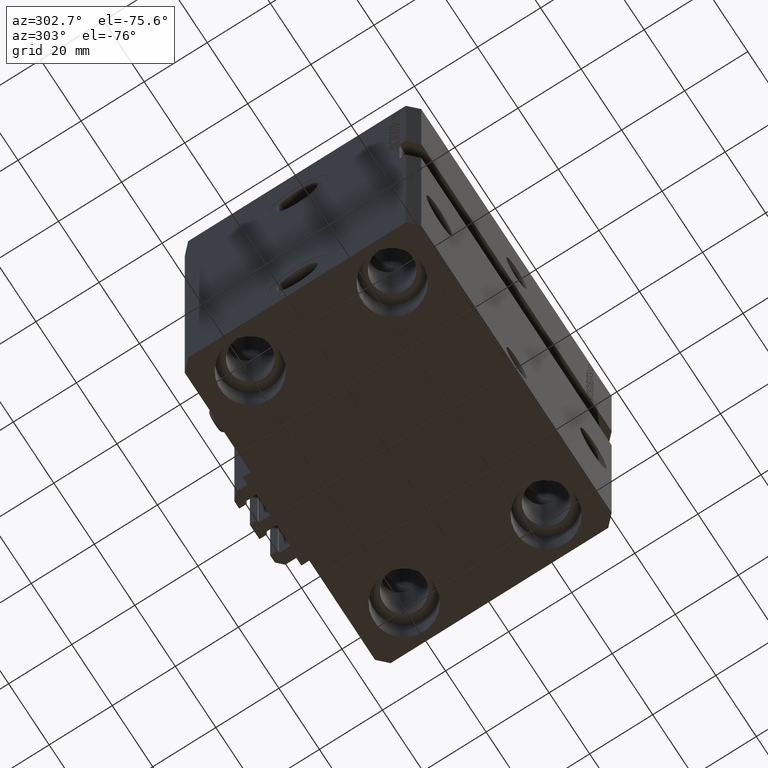
[diagram: clean part render]
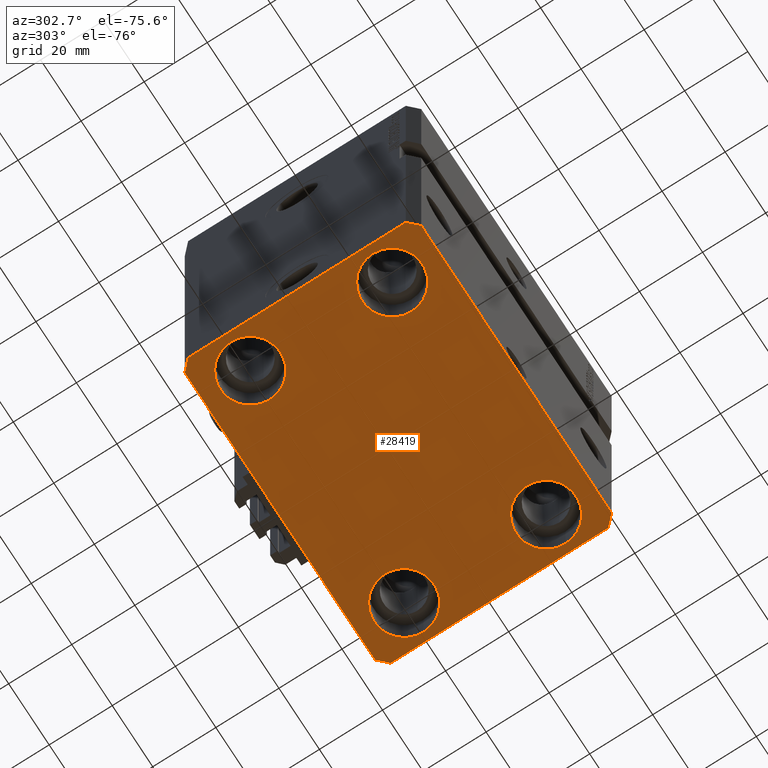
[diagram: same view with one face highlighted and labeled with its STEP entity id]
A machine part, auxiliary view. The second image highlights one B-rep face of the part: STEP entity #28419.
In plain terms, the highlighted planar face has unit normal (0, 0, 1).
Its self-contained STEP definition (entity closure, byte-faithful):
#1051 = DIRECTION ( 'NONE',  ( -0.7071067811865483499, -0.7071067811865466846, 0.000000000000000000 ) ) ;
#1661 = DIRECTION ( 'NONE',  ( 1.000000000000000000, 0.000000000000000000, 0.000000000000000000 ) ) ;
#1916 = EDGE_LOOP ( 'NONE', ( #3172, #8555 ) ) ;
#2616 = CARTESIAN_POINT ( 'NONE',  ( -50.00000000000000000, -34.50000000000000000, -125.0000000000000000 ) ) ;
#2735 = DIRECTION ( 'NONE',  ( -0.000000000000000000, -0.000000000000000000, 1.000000000000000000 ) ) ;
#2848 = LINE ( 'NONE', #2616, #47246 ) ;
#3172 = ORIENTED_EDGE ( 'NONE', *, *, #12357, .T. ) ;
#3466 = CARTESIAN_POINT ( 'NONE',  ( -38.00000000000000711, 22.50000000000000000, -125.0000000000000000 ) ) ;
#4234 = CARTESIAN_POINT ( 'NONE',  ( -47.00000000000001421, 37.50000000000000000, -125.0000000000000000 ) ) ;
#4699 = CARTESIAN_POINT ( 'NONE',  ( 38.00000000000000711, -22.50000000000000000, -125.0000000000000000 ) ) ;
#5129 = CARTESIAN_POINT ( 'NONE',  ( -50.00000000000001421, 34.50000000000000000, -125.0000000000000000 ) ) ;
#5759 = FACE_OUTER_BOUND ( 'NONE', #25024, .T. ) ;
#6725 = EDGE_CURVE ( 'NONE', #13650, #27698, #14414, .T. ) ;
#7178 = VERTEX_POINT ( 'NONE', #40104 ) ;
#7263 = FACE_BOUND ( 'NONE', #1916, .T. ) ;
#7810 = CIRCLE ( 'NONE', #35056, 9.500000000000001776 ) ;
#7842 = CARTESIAN_POINT ( 'NONE',  ( 28.50000000000000355, -22.50000000000000000, -125.0000000000000000 ) ) ;
#8223 = CARTESIAN_POINT ( 'NONE',  ( 38.00000000000000711, 22.50000000000001421, -125.0000000000000000 ) ) ;
#8347 = DIRECTION ( 'NONE',  ( 0.7071067811865483499, 0.7071067811865466846, 0.000000000000000000 ) ) ;
#8416 = DIRECTION ( 'NONE',  ( 1.000000000000000000, 0.000000000000000000, 0.000000000000000000 ) ) ;
#8555 = ORIENTED_EDGE ( 'NONE', *, *, #14999, .T. ) ;
#8592 = CARTESIAN_POINT ( 'NONE',  ( -38.00000000000000711, -22.50000000000000000, -125.0000000000000000 ) ) ;
#10620 = EDGE_CURVE ( 'NONE', #36729, #13831, #31950, .T. ) ;
#10650 = LINE ( 'NONE', #28713, #30235 ) ;
#10731 = DIRECTION ( 'NONE',  ( 1.000000000000000000, 0.000000000000000000, 0.000000000000000000 ) ) ;
#11406 = VECTOR ( 'NONE', #45858, 1000.000000000000000 ) ;
#11913 = EDGE_LOOP ( 'NONE', ( #13462, #26376 ) ) ;
#12357 = EDGE_CURVE ( 'NONE', #26125, #34746, #28098, .T. ) ;
#12834 = VERTEX_POINT ( 'NONE', #39184 ) ;
#13251 = CIRCLE ( 'NONE', #40471, 9.500000000000001776 ) ;
#13279 = AXIS2_PLACEMENT_3D ( 'NONE', #8592, #16398, #27377 ) ;
#13304 = AXIS2_PLACEMENT_3D ( 'NONE', #4699, #19548, #23446 ) ;
#13424 = ORIENTED_EDGE ( 'NONE', *, *, #6725, .F. ) ;
#13462 = ORIENTED_EDGE ( 'NONE', *, *, #39605, .T. ) ;
#13650 = VERTEX_POINT ( 'NONE', #5129 ) ;
#13667 = CIRCLE ( 'NONE', #19913, 9.500000000000001776 ) ;
#13831 = VERTEX_POINT ( 'NONE', #41122 ) ;
#13955 = ORIENTED_EDGE ( 'NONE', *, *, #26945, .F. ) ;
#14061 = VERTEX_POINT ( 'NONE', #35960 ) ;
#14414 = LINE ( 'NONE', #29518, #46687 ) ;
#14999 = EDGE_CURVE ( 'NONE', #34746, #26125, #23545, .T. ) ;
#15079 = DIRECTION ( 'NONE',  ( 1.000000000000000000, 0.000000000000000000, 0.000000000000000000 ) ) ;
#16398 = DIRECTION ( 'NONE',  ( -0.000000000000000000, -0.000000000000000000, 1.000000000000000000 ) ) ;
#16410 = AXIS2_PLACEMENT_3D ( 'NONE', #8223, #33594, #15079 ) ;
#16496 = EDGE_LOOP ( 'NONE', ( #44079, #38513 ) ) ;
#17032 = CARTESIAN_POINT ( 'NONE',  ( 38.00000000000000711, 22.50000000000001421, -125.0000000000000000 ) ) ;
#18059 = CARTESIAN_POINT ( 'NONE',  ( 28.50000000000000355, 22.50000000000001421, -125.0000000000000000 ) ) ;
#18161 = CARTESIAN_POINT ( 'NONE',  ( 47.00000000000056843, 37.49999999999999289, -125.0000000000000000 ) ) ;
#19453 = CARTESIAN_POINT ( 'NONE',  ( -38.00000000000000711, -22.50000000000000000, -125.0000000000000000 ) ) ;
#19468 = VERTEX_POINT ( 'NONE', #32347 ) ;
#19548 = DIRECTION ( 'NONE',  ( -0.000000000000000000, -0.000000000000000000, 1.000000000000000000 ) ) ;
#19913 = AXIS2_PLACEMENT_3D ( 'NONE', #23544, #34022, #8416 ) ;
#20772 = VECTOR ( 'NONE', #1051, 1000.000000000000000 ) ;
#21648 = DIRECTION ( 'NONE',  ( -0.7071067811865361374, 0.7071067811865588970, 0.000000000000000000 ) ) ;
#21835 = CARTESIAN_POINT ( 'NONE',  ( -50.00000000000000000, -34.50000000000000000, -125.0000000000000000 ) ) ;
#21978 = AXIS2_PLACEMENT_3D ( 'NONE', #31631, #42120, #31400 ) ;
#22144 = FACE_BOUND ( 'NONE', #16496, .T. ) ;
#23070 = VERTEX_POINT ( 'NONE', #43703 ) ;
#23446 = DIRECTION ( 'NONE',  ( 1.000000000000000000, 0.000000000000000000, 0.000000000000000000 ) ) ;
#23544 = CARTESIAN_POINT ( 'NONE',  ( -38.00000000000000711, 22.50000000000000000, -125.0000000000000000 ) ) ;
#23545 = CIRCLE ( 'NONE', #21978, 9.500000000000001776 ) ;
#23645 = DIRECTION ( 'NONE',  ( -0.000000000000000000, -0.000000000000000000, 1.000000000000000000 ) ) ;
#23700 = EDGE_CURVE ( 'NONE', #14061, #45971, #41805, .T. ) ;
#24094 = ORIENTED_EDGE ( 'NONE', *, *, #31006, .F. ) ;
#24269 = DIRECTION ( 'NONE',  ( 1.000000000000000000, 0.000000000000000000, -0.000000000000000000 ) ) ;
#24579 = CARTESIAN_POINT ( 'NONE',  ( -47.00000000000000000, -37.49999999999999289, -125.0000000000000000 ) ) ;
#24611 = ORIENTED_EDGE ( 'NONE', *, *, #38673, .T. ) ;
#24687 = VECTOR ( 'NONE', #35311, 1000.000000000000000 ) ;
#24815 = LINE ( 'NONE', #24579, #24687 ) ;
#24983 = EDGE_CURVE ( 'NONE', #44327, #35275, #13667, .T. ) ;
#25024 = EDGE_LOOP ( 'NONE', ( #35767, #24094, #13955, #42656, #32411, #27275, #13424, #43116 ) ) ;
#25066 = VECTOR ( 'NONE', #8347, 1000.000000000000000 ) ;
#25720 = CARTESIAN_POINT ( 'NONE',  ( -28.50000000000000355, 22.50000000000000000, -125.0000000000000000 ) ) ;
#25812 = EDGE_CURVE ( 'NONE', #19468, #7178, #47387, .T. ) ;
#26125 = VERTEX_POINT ( 'NONE', #7842 ) ;
#26376 = ORIENTED_EDGE ( 'NONE', *, *, #23700, .T. ) ;
#26945 = EDGE_CURVE ( 'NONE', #29003, #23070, #41725, .T. ) ;
#26991 = EDGE_CURVE ( 'NONE', #7178, #13650, #38064, .T. ) ;
#27275 = ORIENTED_EDGE ( 'NONE', *, *, #31656, .F. ) ;
#27375 = LINE ( 'NONE', #41743, #25066 ) ;
#27377 = DIRECTION ( 'NONE',  ( 1.000000000000000000, 0.000000000000000000, 0.000000000000000000 ) ) ;
#27472 = EDGE_LOOP ( 'NONE', ( #44660, #24611 ) ) ;
#27650 = CARTESIAN_POINT ( 'NONE',  ( 47.50000000000000711, -22.50000000000000000, -125.0000000000000000 ) ) ;
#27698 = VERTEX_POINT ( 'NONE', #21835 ) ;
#28098 = CIRCLE ( 'NONE', #13304, 9.500000000000001776 ) ;
#28190 = EDGE_CURVE ( 'NONE', #12834, #38578, #24815, .T. ) ;
#28419 = ADVANCED_FACE ( 'NONE', ( #29444, #7263, #22144, #35237, #5759 ), #35468, .F. ) ;
#28426 = DIRECTION ( 'NONE',  ( 0.7071067811865491270, -0.7071067811865459074, 0.000000000000000000 ) ) ;
#28713 = CARTESIAN_POINT ( 'NONE',  ( 50.00000000000051870, 34.49999999999995026, -125.0000000000000000 ) ) ;
#29003 = VERTEX_POINT ( 'NONE', #44518 ) ;
#29444 = FACE_BOUND ( 'NONE', #11913, .T. ) ;
#29518 = CARTESIAN_POINT ( 'NONE',  ( -50.00000000000001421, 34.50000000000000000, -125.0000000000000000 ) ) ;
#30163 = AXIS2_PLACEMENT_3D ( 'NONE', #46203, #46432, #24269 ) ;
#30235 = VECTOR ( 'NONE', #21648, 1000.000000000000114 ) ;
#30949 = DIRECTION ( 'NONE',  ( 1.000000000000000000, 0.000000000000000000, 0.000000000000000000 ) ) ;
#31006 = EDGE_CURVE ( 'NONE', #23070, #19468, #10650, .T. ) ;
#31400 = DIRECTION ( 'NONE',  ( 1.000000000000000000, 0.000000000000000000, 0.000000000000000000 ) ) ;
#31631 = CARTESIAN_POINT ( 'NONE',  ( 38.00000000000000711, -22.50000000000000000, -125.0000000000000000 ) ) ;
#31656 = EDGE_CURVE ( 'NONE', #27698, #12834, #2848, .T. ) ;
#31950 = CIRCLE ( 'NONE', #16410, 9.500000000000001776 ) ;
#32347 = CARTESIAN_POINT ( 'NONE',  ( 47.00000000000056843, 37.49999999999999289, -125.0000000000000000 ) ) ;
#32411 = ORIENTED_EDGE ( 'NONE', *, *, #28190, .F. ) ;
#33183 = CARTESIAN_POINT ( 'NONE',  ( -47.50000000000000711, 22.50000000000000000, -125.0000000000000000 ) ) ;
#33594 = DIRECTION ( 'NONE',  ( -0.000000000000000000, -0.000000000000000000, 1.000000000000000000 ) ) ;
#33704 = CARTESIAN_POINT ( 'NONE',  ( 50.00000000000000000, -34.50000000000000711, -125.0000000000000000 ) ) ;
#34022 = DIRECTION ( 'NONE',  ( -0.000000000000000000, -0.000000000000000000, 1.000000000000000000 ) ) ;
#34297 = CIRCLE ( 'NONE', #13279, 9.500000000000001776 ) ;
#34553 = DIRECTION ( 'NONE',  ( -0.000000000000000000, -0.000000000000000000, 1.000000000000000000 ) ) ;
#34746 = VERTEX_POINT ( 'NONE', #27650 ) ;
#35056 = AXIS2_PLACEMENT_3D ( 'NONE', #17032, #23645, #30949 ) ;
#35237 = FACE_BOUND ( 'NONE', #27472, .T. ) ;
#35275 = VERTEX_POINT ( 'NONE', #25720 ) ;
#35311 = DIRECTION ( 'NONE',  ( 1.000000000000000000, -1.476360405086644309E-16, 0.000000000000000000 ) ) ;
#35468 = PLANE ( 'NONE',  #30163 ) ;
#35767 = ORIENTED_EDGE ( 'NONE', *, *, #25812, .F. ) ;
#35960 = CARTESIAN_POINT ( 'NONE',  ( -28.50000000000000355, -22.50000000000000000, -125.0000000000000000 ) ) ;
#36729 = VERTEX_POINT ( 'NONE', #18059 ) ;
#37869 = EDGE_CURVE ( 'NONE', #13831, #36729, #7810, .T. ) ;
#38064 = LINE ( 'NONE', #4234, #20772 ) ;
#38513 = ORIENTED_EDGE ( 'NONE', *, *, #37869, .T. ) ;
#38578 = VERTEX_POINT ( 'NONE', #42681 ) ;
#38673 = EDGE_CURVE ( 'NONE', #35275, #44327, #13251, .T. ) ;
#39184 = CARTESIAN_POINT ( 'NONE',  ( -47.00000000000000000, -37.49999999999999289, -125.0000000000000000 ) ) ;
#39605 = EDGE_CURVE ( 'NONE', #45971, #14061, #34297, .T. ) ;
#40104 = CARTESIAN_POINT ( 'NONE',  ( -47.00000000000001421, 37.50000000000000000, -125.0000000000000000 ) ) ;
#40471 = AXIS2_PLACEMENT_3D ( 'NONE', #3466, #2735, #10731 ) ;
#41122 = CARTESIAN_POINT ( 'NONE',  ( 47.50000000000000711, 22.50000000000001421, -125.0000000000000000 ) ) ;
#41725 = LINE ( 'NONE', #33704, #11406 ) ;
#41743 = CARTESIAN_POINT ( 'NONE',  ( 47.00000000000000000, -37.50000000000000711, -125.0000000000000000 ) ) ;
#41745 = VECTOR ( 'NONE', #48119, 1000.000000000000000 ) ;
#41805 = CIRCLE ( 'NONE', #43347, 9.500000000000001776 ) ;
#42120 = DIRECTION ( 'NONE',  ( -0.000000000000000000, -0.000000000000000000, 1.000000000000000000 ) ) ;
#42282 = EDGE_CURVE ( 'NONE', #38578, #29003, #27375, .T. ) ;
#42656 = ORIENTED_EDGE ( 'NONE', *, *, #42282, .F. ) ;
#42681 = CARTESIAN_POINT ( 'NONE',  ( 47.00000000000000000, -37.50000000000000711, -125.0000000000000000 ) ) ;
#43115 = CARTESIAN_POINT ( 'NONE',  ( -47.50000000000000711, -22.50000000000000000, -125.0000000000000000 ) ) ;
#43116 = ORIENTED_EDGE ( 'NONE', *, *, #26991, .F. ) ;
#43347 = AXIS2_PLACEMENT_3D ( 'NONE', #19453, #34553, #1661 ) ;
#43703 = CARTESIAN_POINT ( 'NONE',  ( 50.00000000000051870, 34.49999999999995026, -125.0000000000000000 ) ) ;
#44079 = ORIENTED_EDGE ( 'NONE', *, *, #10620, .T. ) ;
#44327 = VERTEX_POINT ( 'NONE', #33183 ) ;
#44372 = DIRECTION ( 'NONE',  ( 2.011273595335428326E-16, -1.000000000000000000, 0.000000000000000000 ) ) ;
#44518 = CARTESIAN_POINT ( 'NONE',  ( 50.00000000000000000, -34.50000000000000711, -125.0000000000000000 ) ) ;
#44660 = ORIENTED_EDGE ( 'NONE', *, *, #24983, .T. ) ;
#45858 = DIRECTION ( 'NONE',  ( 7.441712302741091634E-15, 1.000000000000000000, 0.000000000000000000 ) ) ;
#45971 = VERTEX_POINT ( 'NONE', #43115 ) ;
#46203 = CARTESIAN_POINT ( 'NONE',  ( 0.000000000000000000, 0.000000000000000000, -125.0000000000000000 ) ) ;
#46432 = DIRECTION ( 'NONE',  ( 0.000000000000000000, 0.000000000000000000, 1.000000000000000000 ) ) ;
#46687 = VECTOR ( 'NONE', #44372, 1000.000000000000000 ) ;
#47246 = VECTOR ( 'NONE', #28426, 1000.000000000000114 ) ;
#47387 = LINE ( 'NONE', #18161, #41745 ) ;
#48119 = DIRECTION ( 'NONE',  ( -1.000000000000000000, 7.381802025433175941E-17, 0.000000000000000000 ) ) ;